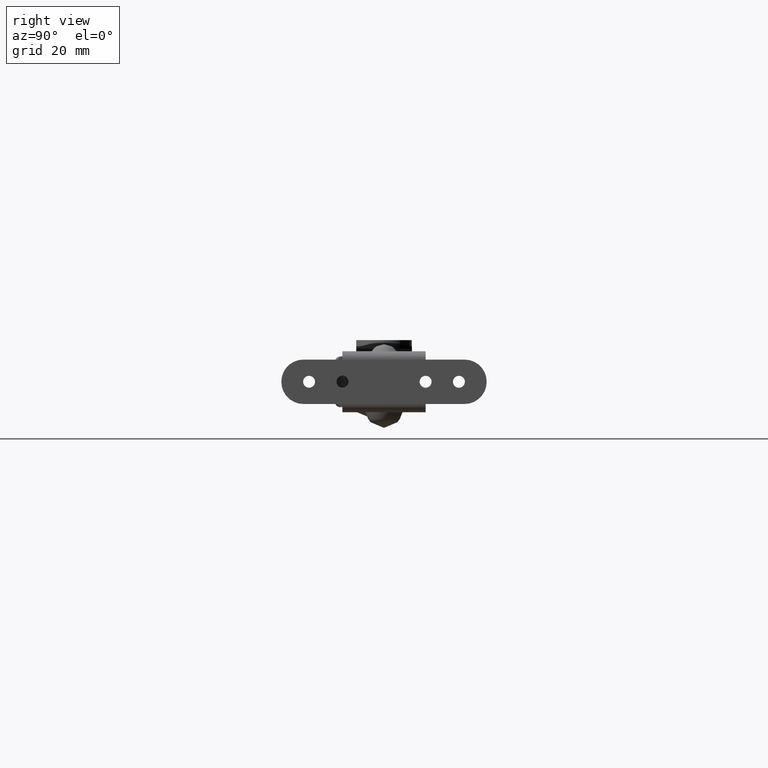
[diagram: clean part render]
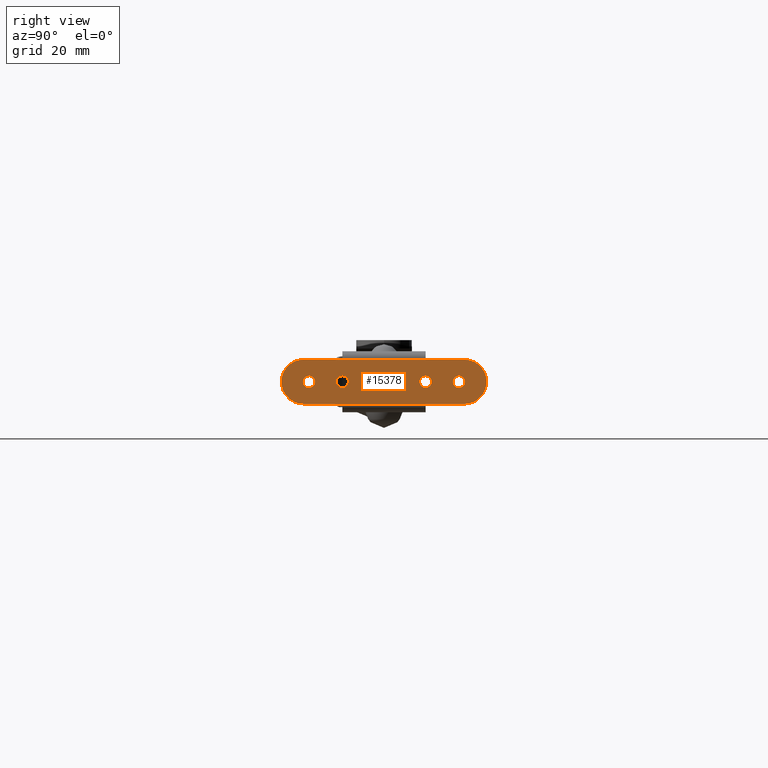
[diagram: same view with one face highlighted and labeled with its STEP entity id]
A machine part, right view. The second image highlights one B-rep face of the part: STEP entity #15378.
In plain terms, the highlighted face is a freeform B-spline surface patch.
Its self-contained STEP definition (entity closure, byte-faithful):
#12897=CARTESIAN_POINT('',(18.0,-25.459201807567080,1.499477964155450));
#12898=VERTEX_POINT('',#12897);
#12904=CARTESIAN_POINT('',(18.0,-27.0,2.150000000000000));
#12905=VERTEX_POINT('',#12904);
#12906=CARTESIAN_POINT('',(18.0,-27.0,2.150000000000000));
#12907=CARTESIAN_POINT('',(17.999999999999989,-26.695750483123220,2.150423394734081));
#12908=CARTESIAN_POINT('',(18.000000000000028,-26.123532469456698,2.026276552338809));
#12909=CARTESIAN_POINT('',(17.999999999999972,-25.646271446930260,1.692024193561688));
#12910=CARTESIAN_POINT('',(18.0,-25.459201807567080,1.499477964155450));
#12911=B_SPLINE_CURVE_WITH_KNOTS('',3,(#12906,#12907,#12908,#12909,#12910),.UNSPECIFIED.,.F.,.U.,(4,1,4),(0.000000164949060,0.912572123704127,1.717868768169416),.UNSPECIFIED.);
#12912=EDGE_CURVE('',#12905,#12898,#12911,.T.);
#12914=CARTESIAN_POINT('',(18.0,-29.149999999990779,0.000006295538745));
#12915=VERTEX_POINT('',#12914);
#12916=CARTESIAN_POINT('',(18.0,-29.149999999990779,0.000006295538745));
#12917=CARTESIAN_POINT('',(18.0,-29.150297612773510,0.281493025438892));
#12918=CARTESIAN_POINT('',(18.000000000000060,-29.062364559717221,0.720973631268849));
#12919=CARTESIAN_POINT('',(17.999999999999929,-28.729553056799141,1.325705955840567));
#12920=CARTESIAN_POINT('',(18.000000000000099,-28.350973642690839,1.704338259039302));
#12921=CARTESIAN_POINT('',(17.999999999999879,-27.755978427585411,2.051033853443723));
#12922=CARTESIAN_POINT('',(18.000000000000060,-27.316743552931602,2.150514070509237));
#12923=CARTESIAN_POINT('',(18.0,-27.0,2.150000000000000));
#12924=B_SPLINE_CURVE_WITH_KNOTS('',3,(#12916,#12917,#12918,#12919,#12920,#12921,#12922,#12923),.UNSPECIFIED.,.F.,.U.,(4,1,1,1,1,4),(0.000000606276210,0.844323780289163,1.319260433936023,2.058033488242341,2.427423264264629,3.377293302073351),.UNSPECIFIED.);
#12925=EDGE_CURVE('',#12915,#12905,#12924,.T.);
#12927=CARTESIAN_POINT('',(18.0,-27.0,-2.150000000000000));
#12928=VERTEX_POINT('',#12927);
#12929=CARTESIAN_POINT('',(18.0,-27.0,-2.150000000000000));
#12930=CARTESIAN_POINT('',(17.999999999999989,-27.281493274410870,-2.150305941666503));
#12931=CARTESIAN_POINT('',(18.000000000000039,-27.720966571098970,-2.062351286567165));
#12932=CARTESIAN_POINT('',(17.999999999999961,-28.279103580769998,-1.755113143020389));
#12933=CARTESIAN_POINT('',(18.000000000000039,-28.695320086357711,-1.368577850952369));
#12934=CARTESIAN_POINT('',(17.999999999999940,-29.051831889488611,-0.773755530901841));
#12935=CARTESIAN_POINT('',(18.000000000000011,-29.150316741814379,-0.281478578626584));
#12936=CARTESIAN_POINT('',(18.0,-29.149999999990779,0.000006295538745));
#12937=B_SPLINE_CURVE_WITH_KNOTS('',3,(#12929,#12930,#12931,#12932,#12933,#12934,#12935,#12936),.UNSPECIFIED.,.F.,.U.,(4,1,1,1,1,4),(0.000000597697992,0.844325547906954,1.319263190933819,1.899671243941788,2.532975447721739,3.377300398789865),.UNSPECIFIED.);
#12938=EDGE_CURVE('',#12928,#12915,#12937,.T.);
#12940=CARTESIAN_POINT('',(18.0,-25.414852835289750,-1.452520295265433));
#12941=VERTEX_POINT('',#12940);
#12942=CARTESIAN_POINT('',(18.0,-25.414852835289750,-1.452520295265433));
#12943=CARTESIAN_POINT('',(18.000000000000011,-25.602839345318340,-1.658071100082351));
#12944=CARTESIAN_POINT('',(18.0,-26.090622456890991,-2.016670596292910));
#12945=CARTESIAN_POINT('',(17.999999999999989,-26.684306013727589,-2.150432091810990));
#12946=CARTESIAN_POINT('',(18.0,-27.0,-2.150000000000000));
#12947=B_SPLINE_CURVE_WITH_KNOTS('',3,(#12942,#12943,#12944,#12945,#12946),.UNSPECIFIED.,.F.,.U.,(4,1,4),(0.000000157394088,0.835571402544047,1.782467589632661),.UNSPECIFIED.);
#12948=EDGE_CURVE('',#12941,#12928,#12947,.T.);
#13041=CARTESIAN_POINT('',(18.0,-24.850000000009221,-0.000006295538746));
#13042=VERTEX_POINT('',#13041);
#13043=CARTESIAN_POINT('',(18.0,-24.850000000009221,-0.000006295538746));
#13044=CARTESIAN_POINT('',(18.000000000000028,-24.849952973655629,-0.199357095401086));
#13045=CARTESIAN_POINT('',(17.999999999999911,-24.924383772497428,-0.730967208629726));
#13046=CARTESIAN_POINT('',(18.000000000000060,-25.189823750439981,-1.207896504227904));
#13047=CARTESIAN_POINT('',(18.0,-25.414852835289750,-1.452520295265433));
#13048=B_SPLINE_CURVE_WITH_KNOTS('',3,(#13043,#13044,#13045,#13046,#13047),.UNSPECIFIED.,.F.,.U.,(4,1,4),(0.000000113973257,0.598074431573798,1.594824979661138),.UNSPECIFIED.);
#13049=EDGE_CURVE('',#13042,#12941,#13048,.T.);
#13051=CARTESIAN_POINT('',(18.0,-25.459201807567080,1.499477964155450));
#13052=CARTESIAN_POINT('',(17.999999999999950,-25.278178280296611,1.313790283507013));
#13053=CARTESIAN_POINT('',(18.000000000000039,-24.965358004063742,0.846658013868533));
#13054=CARTESIAN_POINT('',(18.0,-24.849601018985648,0.293900815568005));
#13055=CARTESIAN_POINT('',(18.0,-24.850000000009221,-0.000006295538746));
#13056=B_SPLINE_CURVE_WITH_KNOTS('',3,(#13051,#13052,#13053,#13054,#13055),.UNSPECIFIED.,.F.,.U.,(4,1,4),(0.000000138936657,0.777900639050482,1.659433217765617),.UNSPECIFIED.);
#13057=EDGE_CURVE('',#12898,#13042,#13056,.T.);
#13236=CARTESIAN_POINT('',(18.0,-13.459201807567080,1.499477964155450));
#13237=VERTEX_POINT('',#13236);
#13243=CARTESIAN_POINT('',(18.0,-15.0,2.150000000000000));
#13244=VERTEX_POINT('',#13243);
#13245=CARTESIAN_POINT('',(18.0,-15.0,2.150000000000000));
#13246=CARTESIAN_POINT('',(18.000000000000021,-14.695744088728199,2.150434113083628));
#13247=CARTESIAN_POINT('',(17.999999999999989,-14.123555263226290,2.026242237522251));
#13248=CARTESIAN_POINT('',(18.0,-13.646256848641100,1.692045750154048));
#13249=CARTESIAN_POINT('',(18.0,-13.459201807567080,1.499477964155450));
#13250=B_SPLINE_CURVE_WITH_KNOTS('',3,(#13245,#13246,#13247,#13248,#13249),.UNSPECIFIED.,.F.,.U.,(4,1,4),(0.000000164949174,0.912572123704182,1.717868768169416),.UNSPECIFIED.);
#13251=EDGE_CURVE('',#13244,#13237,#13250,.T.);
#13253=CARTESIAN_POINT('',(18.0,-17.149999999990779,0.000006295538745));
#13254=VERTEX_POINT('',#13253);
#13255=CARTESIAN_POINT('',(18.0,-17.149999999990779,0.000006295538745));
#13256=CARTESIAN_POINT('',(17.999999999999989,-17.150301557022200,0.281485255457499));
#13257=CARTESIAN_POINT('',(18.000000000000028,-17.041364549900571,0.826551286772748));
#13258=CARTESIAN_POINT('',(17.999999999999972,-16.573342444659168,1.546589612127106));
#13259=CARTESIAN_POINT('',(18.0,-15.861747313068379,2.034520378152779));
#13260=CARTESIAN_POINT('',(18.0,-15.281461266786710,2.150266771089999));
#13261=CARTESIAN_POINT('',(18.0,-15.0,2.150000000000000));
#13262=B_SPLINE_CURVE_WITH_KNOTS('',3,(#13255,#13256,#13257,#13258,#13259,#13260,#13261),.UNSPECIFIED.,.F.,.U.,(4,1,1,1,4),(0.000000606274981,0.844323780288356,1.635966672481380,2.532970128918777,3.377293302073343),.UNSPECIFIED.);
#13263=EDGE_CURVE('',#13254,#13244,#13262,.T.);
#13265=CARTESIAN_POINT('',(18.0,-15.0,-2.150000000000000));
#13266=VERTEX_POINT('',#13265);
#13267=CARTESIAN_POINT('',(18.0,-15.0,-2.150000000000000));
#13268=CARTESIAN_POINT('',(17.999999999999989,-15.228673910048339,-2.150133454254727));
#13269=CARTESIAN_POINT('',(18.0,-15.633153007300320,-2.084800339004545));
#13270=CARTESIAN_POINT('',(18.000000000000028,-16.241998734765179,-1.797009343236360));
#13271=CARTESIAN_POINT('',(17.999999999999961,-16.766473407785821,-1.310068851278645));
#13272=CARTESIAN_POINT('',(17.999999999999979,-17.087979555118331,-0.650858085215618));
#13273=CARTESIAN_POINT('',(18.000000000000071,-17.150032759548729,-0.193463432816850));
#13274=CARTESIAN_POINT('',(18.0,-17.149999999990779,0.000006295538745));
#13275=B_SPLINE_CURVE_WITH_KNOTS('',3,(#13267,#13268,#13269,#13270,#13271,#13272,#13273,#13274),.UNSPECIFIED.,.F.,.U.,(4,1,1,1,1,4),(0.000000597693784,0.685998302191267,1.213733763379951,2.005211096693193,2.796848007169019,3.377300398789904),.UNSPECIFIED.);
#13276=EDGE_CURVE('',#13266,#13254,#13275,.T.);
#13278=CARTESIAN_POINT('',(18.0,-13.414852835289750,-1.452520295265434));
#13279=VERTEX_POINT('',#13278);
#13280=CARTESIAN_POINT('',(18.0,-13.414852835289750,-1.452520295265434));
#13281=CARTESIAN_POINT('',(17.999999999999979,-13.590356029739810,-1.644286150257439));
#13282=CARTESIAN_POINT('',(18.000000000000039,-14.072177000774300,-2.008502698538298));
#13283=CARTESIAN_POINT('',(18.0,-14.665693857315340,-2.150579960358619));
#13284=CARTESIAN_POINT('',(18.0,-15.0,-2.150000000000000));
#13285=B_SPLINE_CURVE_WITH_KNOTS('',3,(#13280,#13281,#13282,#13283,#13284),.UNSPECIFIED.,.F.,.U.,(4,1,4),(0.000000157393799,0.779855805970297,1.782467589632663),.UNSPECIFIED.);
#13286=EDGE_CURVE('',#13279,#13266,#13285,.T.);
#13379=CARTESIAN_POINT('',(18.0,-12.850000000009221,-0.000006295538747));
#13380=VERTEX_POINT('',#13379);
#13381=CARTESIAN_POINT('',(18.0,-12.850000000009221,-0.000006295538747));
#13382=CARTESIAN_POINT('',(18.000000000000039,-12.849442002294399,-0.332373944443628));
#13383=CARTESIAN_POINT('',(17.999999999999961,-12.975758942813700,-0.863365946456873));
#13384=CARTESIAN_POINT('',(18.000000000000021,-13.280166848975160,-1.305570416271069));
#13385=CARTESIAN_POINT('',(18.0,-13.414852835289750,-1.452520295265434));
#13386=B_SPLINE_CURVE_WITH_KNOTS('',3,(#13381,#13382,#13383,#13384,#13385),.UNSPECIFIED.,.F.,.U.,(4,1,4),(0.000000113973225,0.996750661525763,1.594824979661133),.UNSPECIFIED.);
#13387=EDGE_CURVE('',#13380,#13279,#13386,.T.);
#13389=CARTESIAN_POINT('',(18.0,-13.459201807567080,1.499477964155450));
#13390=CARTESIAN_POINT('',(18.000000000000060,-13.217426659037249,1.252136543511485));
#13391=CARTESIAN_POINT('',(17.999999999999861,-12.930588874066681,0.760564932018708));
#13392=CARTESIAN_POINT('',(18.000000000000071,-12.849935625625591,0.207420895109838));
#13393=CARTESIAN_POINT('',(18.0,-12.850000000009221,-0.000006295538747));
#13394=B_SPLINE_CURVE_WITH_KNOTS('',3,(#13389,#13390,#13391,#13392,#13393),.UNSPECIFIED.,.F.,.U.,(4,1,4),(0.000000138936426,1.037128894883254,1.659433217765619),.UNSPECIFIED.);
#13395=EDGE_CURVE('',#13237,#13380,#13394,.T.);
#13574=CARTESIAN_POINT('',(18.0,16.540798192432920,1.499477964155450));
#13575=VERTEX_POINT('',#13574);
#13581=CARTESIAN_POINT('',(18.0,15.0,2.150000000000000));
#13582=VERTEX_POINT('',#13581);
#13583=CARTESIAN_POINT('',(18.0,15.0,2.150000000000000));
#13584=CARTESIAN_POINT('',(18.000000000000011,15.304241433917680,2.150371273074228));
#13585=CARTESIAN_POINT('',(18.000000000000011,15.876469711283869,2.026322671281937));
#13586=CARTESIAN_POINT('',(17.999999999999989,16.353738515937710,1.692028989356387));
#13587=CARTESIAN_POINT('',(18.0,16.540798192432920,1.499477964155450));
#13588=B_SPLINE_CURVE_WITH_KNOTS('',3,(#13583,#13584,#13585,#13586,#13587),.UNSPECIFIED.,.F.,.U.,(4,1,4),(0.000000164949737,0.912572123704434,1.717868768169410),.UNSPECIFIED.);
#13589=EDGE_CURVE('',#13582,#13575,#13588,.T.);
#13591=CARTESIAN_POINT('',(18.0,12.850000000009221,0.000006295538746));
#13592=VERTEX_POINT('',#13591);
#13593=CARTESIAN_POINT('',(18.0,12.850000000009221,0.000006295538746));
#13594=CARTESIAN_POINT('',(18.0,12.849693314433649,0.281483492746735));
#13595=CARTESIAN_POINT('',(17.999999999999979,12.948153977729600,0.773778037201649));
#13596=CARTESIAN_POINT('',(18.000000000000028,13.322940596781949,1.399119685228218));
#13597=CARTESIAN_POINT('',(17.999999999999950,13.750015145177070,1.776679861102987));
#13598=CARTESIAN_POINT('',(18.000000000000050,14.314200408061170,2.069370795820938));
#13599=CARTESIAN_POINT('',(17.999999999999961,14.718500409004671,2.150330942953661));
#13600=CARTESIAN_POINT('',(18.0,15.0,2.150000000000000));
#13601=B_SPLINE_CURVE_WITH_KNOTS('',3,(#13593,#13594,#13595,#13596,#13597,#13598,#13599,#13600),.UNSPECIFIED.,.F.,.U.,(4,1,1,1,1,4),(0.000000606275462,0.844323780288794,1.477626661721971,2.163562683988994,2.532970128918807,3.377293302073351),.UNSPECIFIED.);
#13602=EDGE_CURVE('',#13592,#13582,#13601,.T.);
#13604=CARTESIAN_POINT('',(18.0,15.0,-2.150000000000000));
#13605=VERTEX_POINT('',#13604);
#13606=CARTESIAN_POINT('',(18.0,15.0,-2.150000000000000));
#13607=CARTESIAN_POINT('',(18.000000000000021,14.771324516884940,-2.150116152699336));
#13608=CARTESIAN_POINT('',(17.999999999999961,14.331661376712770,-2.079195825140819));
#13609=CARTESIAN_POINT('',(18.000000000000060,13.759895633606410,-1.791405473385591));
#13610=CARTESIAN_POINT('',(18.0,13.278605404434780,-1.344443413225727));
#13611=CARTESIAN_POINT('',(17.999999999999961,12.935515145559529,-0.738710577494516));
#13612=CARTESIAN_POINT('',(18.000000000000082,12.849837644432240,-0.246263842023611));
#13613=CARTESIAN_POINT('',(18.0,12.850000000009221,0.000006295538746));
#13614=B_SPLINE_CURVE_WITH_KNOTS('',3,(#13606,#13607,#13608,#13609,#13610,#13611,#13612,#13613),.UNSPECIFIED.,.F.,.U.,(4,1,1,1,1,4),(0.000000597693810,0.685998302191261,1.319263190931543,1.899671243940193,2.638522534265282,3.377300398789882),.UNSPECIFIED.);
#13615=EDGE_CURVE('',#13605,#13592,#13614,.T.);
#13617=CARTESIAN_POINT('',(18.0,16.585147164710250,-1.452520295265433));
#13618=VERTEX_POINT('',#13617);
#13619=CARTESIAN_POINT('',(18.0,16.585147164710250,-1.452520295265433));
#13620=CARTESIAN_POINT('',(17.999999999999989,16.472267741060609,-1.575726350565062));
#13621=CARTESIAN_POINT('',(18.0,16.175211690621332,-1.832405354862950));
#13622=CARTESIAN_POINT('',(18.000000000000011,15.631268941328470,-2.088750679753948));
#13623=CARTESIAN_POINT('',(18.000000000000011,15.204237002662770,-2.150059197079588));
#13624=CARTESIAN_POINT('',(18.0,15.0,-2.150000000000000));
#13625=B_SPLINE_CURVE_WITH_KNOTS('',3,(#13619,#13620,#13621,#13622,#13623,#13624),.UNSPECIFIED.,.F.,.U.,(4,1,1,4),(0.000000157394043,0.501324065869875,1.169737218641443,1.782467589632661),.UNSPECIFIED.);
#13626=EDGE_CURVE('',#13618,#13605,#13625,.T.);
#13720=CARTESIAN_POINT('',(18.0,17.149999999990779,-0.000006295538746));
#13721=VERTEX_POINT('',#13720);
#13722=CARTESIAN_POINT('',(18.0,17.149999999990779,-0.000006295538746));
#13723=CARTESIAN_POINT('',(18.0,17.150165667007450,-0.249226534986294));
#13724=CARTESIAN_POINT('',(18.000000000000060,17.056495809530031,-0.780677257322077));
#13725=CARTESIAN_POINT('',(17.999999999999929,16.776194182768510,-1.244493448982127));
#13726=CARTESIAN_POINT('',(18.0,16.585147164710250,-1.452520295265433));
#13727=B_SPLINE_CURVE_WITH_KNOTS('',3,(#13722,#13723,#13724,#13725,#13726),.UNSPECIFIED.,.F.,.U.,(4,1,4),(0.000000113973284,0.747610898959969,1.594824979661133),.UNSPECIFIED.);
#13728=EDGE_CURVE('',#13721,#13618,#13727,.T.);
#13730=CARTESIAN_POINT('',(18.0,16.540798192432920,1.499477964155450));
#13731=CARTESIAN_POINT('',(18.0,16.721789921221681,1.313769114837376));
#13732=CARTESIAN_POINT('',(18.0,17.034708629401869,0.846698220804770));
#13733=CARTESIAN_POINT('',(18.0,17.150351629026961,0.293882229308126));
#13734=CARTESIAN_POINT('',(18.0,17.149999999990779,-0.000006295538746));
#13735=B_SPLINE_CURVE_WITH_KNOTS('',3,(#13730,#13731,#13732,#13733,#13734),.UNSPECIFIED.,.F.,.U.,(4,1,4),(0.000000138936408,0.777900639050451,1.659433217765615),.UNSPECIFIED.);
#13736=EDGE_CURVE('',#13575,#13721,#13735,.T.);
#13915=CARTESIAN_POINT('',(18.0,28.540798192432920,1.499477964155449));
#13916=VERTEX_POINT('',#13915);
#13922=CARTESIAN_POINT('',(18.0,27.0,2.150000000000000));
#13923=VERTEX_POINT('',#13922);
#13924=CARTESIAN_POINT('',(18.0,27.0,2.150000000000000));
#13925=CARTESIAN_POINT('',(18.0,27.358083388531661,2.150878754148904));
#13926=CARTESIAN_POINT('',(18.0,27.929751633630769,2.003472849356493));
#13927=CARTESIAN_POINT('',(18.000000000000011,28.391086588708081,1.653413385761347));
#13928=CARTESIAN_POINT('',(18.0,28.540798192432920,1.499477964155449));
#13929=B_SPLINE_CURVE_WITH_KNOTS('',3,(#13924,#13925,#13926,#13927,#13928),.UNSPECIFIED.,.F.,.U.,(4,1,4),(0.000000164949099,1.073649244360040,1.717868768169422),.UNSPECIFIED.);
#13930=EDGE_CURVE('',#13923,#13916,#13929,.T.);
#13932=CARTESIAN_POINT('',(18.0,24.850000000009221,0.000006295538745));
#13933=VERTEX_POINT('',#13932);
#13934=CARTESIAN_POINT('',(18.0,24.850000000009221,0.000006295538745));
#13935=CARTESIAN_POINT('',(18.000000000000011,24.849686426757419,0.281506491887776));
#13936=CARTESIAN_POINT('',(17.999999999999961,24.937671055993651,0.720948096734108));
#13937=CARTESIAN_POINT('',(18.000000000000082,25.261898510182430,1.310167306180281));
#13938=CARTESIAN_POINT('',(17.999999999999851,25.659986374512229,1.718165797396204));
#13939=CARTESIAN_POINT('',(18.000000000000188,26.261449805235451,2.058802038979283));
#13940=CARTESIAN_POINT('',(17.999999999999869,26.718499571228900,2.150337533300317));
#13941=CARTESIAN_POINT('',(18.0,27.0,2.150000000000000));
#13942=B_SPLINE_CURVE_WITH_KNOTS('',3,(#13934,#13935,#13936,#13937,#13938,#13939,#13940,#13941),.UNSPECIFIED.,.F.,.U.,(4,1,1,1,1,4),(0.000000606272893,0.844323780287274,1.319260433934880,2.005206869983384,2.532970128918695,3.377293302073346),.UNSPECIFIED.);
#13943=EDGE_CURVE('',#13933,#13923,#13942,.T.);
#13945=CARTESIAN_POINT('',(18.0,27.0,-2.150000000000000));
#13946=VERTEX_POINT('',#13945);
#13947=CARTESIAN_POINT('',(18.0,27.0,-2.150000000000000));
#13948=CARTESIAN_POINT('',(17.999999999999989,26.806541379758428,-2.150004548118281));
#13949=CARTESIAN_POINT('',(18.000000000000028,26.313883058174159,-2.083340039780637));
#13950=CARTESIAN_POINT('',(17.999999999999979,25.691686561745200,-1.760626524212652));
#13951=CARTESIAN_POINT('',(18.000000000000021,25.244910416824961,-1.279045078835551));
#13952=CARTESIAN_POINT('',(18.000000000000131,24.937645516223540,-0.720958076929820));
#13953=CARTESIAN_POINT('',(17.999999999999829,24.849693036016959,-0.281487866287812));
#13954=CARTESIAN_POINT('',(18.0,24.850000000009221,0.000006295538745));
#13955=B_SPLINE_CURVE_WITH_KNOTS('',3,(#13947,#13948,#13949,#13950,#13951,#13952,#13953,#13954),.UNSPECIFIED.,.F.,.U.,(4,1,1,1,1,4),(0.000000597692859,0.580452994922159,1.477629763892594,2.058037791726003,2.532975447720886,3.377300398789868),.UNSPECIFIED.);
#13956=EDGE_CURVE('',#13946,#13933,#13955,.T.);
#13958=CARTESIAN_POINT('',(18.0,28.585147164710250,-1.452520295265432));
#13959=VERTEX_POINT('',#13958);
#13960=CARTESIAN_POINT('',(18.0,28.585147164710250,-1.452520295265432));
#13961=CARTESIAN_POINT('',(18.000000000000071,28.409662830688781,-1.644311184685287));
#13962=CARTESIAN_POINT('',(17.999999999999812,27.927783579064080,-2.008440165388835));
#13963=CARTESIAN_POINT('',(18.000000000000160,27.334324796847771,-2.150641511915008));
#13964=CARTESIAN_POINT('',(18.0,27.0,-2.150000000000000));
#13965=B_SPLINE_CURVE_WITH_KNOTS('',3,(#13960,#13961,#13962,#13963,#13964),.UNSPECIFIED.,.F.,.U.,(4,1,4),(0.000000157393726,0.779855805970200,1.782467589632662),.UNSPECIFIED.);
#13966=EDGE_CURVE('',#13959,#13946,#13965,.T.);
#14059=CARTESIAN_POINT('',(18.0,29.149999999990779,-0.000006295538747));
#14060=VERTEX_POINT('',#14059);
#14061=CARTESIAN_POINT('',(18.0,29.149999999990779,-0.000006295538747));
#14062=CARTESIAN_POINT('',(18.0,29.150645891228692,-0.332389950168884));
#14063=CARTESIAN_POINT('',(18.0,29.024136221845879,-0.863346522445411));
#14064=CARTESIAN_POINT('',(17.999999999999989,28.719860946736009,-1.305575468757849));
#14065=CARTESIAN_POINT('',(18.0,28.585147164710250,-1.452520295265432));
#14066=B_SPLINE_CURVE_WITH_KNOTS('',3,(#14061,#14062,#14063,#14064,#14065),.UNSPECIFIED.,.F.,.U.,(4,1,4),(0.000000113973804,0.996750661525947,1.594824979661121),.UNSPECIFIED.);
#14067=EDGE_CURVE('',#14060,#13959,#14066,.T.);
#14069=CARTESIAN_POINT('',(18.0,28.540798192432920,1.499477964155449));
#14070=CARTESIAN_POINT('',(17.999999999999979,28.721782329435829,1.313763346080932));
#14071=CARTESIAN_POINT('',(18.000000000000050,29.034714231377709,0.846703737183817));
#14072=CARTESIAN_POINT('',(17.999999999999961,29.150357782406751,0.293881936350264));
#14073=CARTESIAN_POINT('',(18.0,29.149999999990779,-0.000006295538747));
#14074=B_SPLINE_CURVE_WITH_KNOTS('',3,(#14069,#14070,#14071,#14072,#14073),.UNSPECIFIED.,.F.,.U.,(4,1,4),(0.000000138936423,0.777900639050454,1.659433217765613),.UNSPECIFIED.);
#14075=EDGE_CURVE('',#13916,#14060,#14074,.T.);
#14619=CARTESIAN_POINT('',(18.0,15.0,8.0));
#14620=VERTEX_POINT('',#14619);
#14641=CARTESIAN_POINT('',(18.0,-15.0,8.0));
#14642=VERTEX_POINT('',#14641);
#14655=CARTESIAN_POINT('',(18.0,-15.0,8.0));
#14656=CARTESIAN_POINT('',(18.0,15.0,8.0));
#14657=QUASI_UNIFORM_CURVE('',1,(#14655,#14656),.UNSPECIFIED.,.F.,.U.);
#14658=EDGE_CURVE('',#14642,#14620,#14657,.T.);
#14679=CARTESIAN_POINT('',(18.0,15.0,-8.0));
#14680=VERTEX_POINT('',#14679);
#14693=CARTESIAN_POINT('',(18.0,-15.0,-8.0));
#14694=VERTEX_POINT('',#14693);
#14695=CARTESIAN_POINT('',(18.0,15.0,-8.0));
#14696=CARTESIAN_POINT('',(18.0,-15.0,-8.0));
#14697=QUASI_UNIFORM_CURVE('',1,(#14695,#14696),.UNSPECIFIED.,.F.,.U.);
#14698=EDGE_CURVE('',#14680,#14694,#14697,.T.);
#14739=CARTESIAN_POINT('',(18.0,-29.0,-8.0));
#14740=VERTEX_POINT('',#14739);
#14741=CARTESIAN_POINT('',(18.0,-36.999999999999297,0.000003359956013));
#14742=VERTEX_POINT('',#14741);
#14743=CARTESIAN_POINT('',(18.0,-29.0,-8.0));
#14744=CARTESIAN_POINT('',(18.000000000000021,-29.687234287236350,-8.000191493016391));
#14745=CARTESIAN_POINT('',(18.000000000000011,-30.767040098526198,-7.859951317602084));
#14746=CARTESIAN_POINT('',(18.000000000000011,-32.411646713417177,-7.294233246089052));
#14747=CARTESIAN_POINT('',(17.999999999999890,-33.750496091851787,-6.513950516873647));
#14748=CARTESIAN_POINT('',(18.000000000000149,-34.912723600115392,-5.447337013712999));
#14749=CARTESIAN_POINT('',(17.999999999999769,-35.794391886155012,-4.303160590186473));
#14750=CARTESIAN_POINT('',(18.000000000000512,-36.703311243047843,-2.551939699012244));
#14751=CARTESIAN_POINT('',(17.999999999999751,-37.001069657075710,-1.014650573682013));
#14752=CARTESIAN_POINT('',(18.0,-36.999999999999297,0.000003359956013));
#14753=B_SPLINE_CURVE_WITH_KNOTS('',3,(#14743,#14744,#14745,#14746,#14747,#14748,#14749,#14750,#14751,#14752),.UNSPECIFIED.,.F.,.U.,(4,1,1,1,1,1,1,4),(0.000000299004238,2.061652791882080,3.239789943111862,5.203328517679768,6.675867134702102,7.952163252152617,9.523014808326348,12.566451356767210),.UNSPECIFIED.);
#14754=EDGE_CURVE('',#14740,#14742,#14753,.T.);
#14756=CARTESIAN_POINT('',(18.0,-29.0,8.0));
#14757=VERTEX_POINT('',#14756);
#14758=CARTESIAN_POINT('',(18.0,-36.999999999999297,0.000003359956013));
#14759=CARTESIAN_POINT('',(17.999999999999961,-37.000080489654032,0.556322269203726));
#14760=CARTESIAN_POINT('',(18.000000000000050,-36.880056033210337,1.701663113856630));
#14761=CARTESIAN_POINT('',(17.999999999999979,-36.281248847255007,3.515050457946083));
#14762=CARTESIAN_POINT('',(18.000000000000082,-35.210085794161522,5.183997365839030));
#14763=CARTESIAN_POINT('',(17.999999999999911,-33.874650467590172,6.408955914789164));
#14764=CARTESIAN_POINT('',(18.000000000000099,-32.387778967145529,7.312701297789743));
#14765=CARTESIAN_POINT('',(17.999999999999979,-30.799897168659260,7.869918144587428));
#14766=CARTESIAN_POINT('',(18.0,-29.556301029805439,8.000050342610455));
#14767=CARTESIAN_POINT('',(18.0,-29.0,8.0));
#14768=B_SPLINE_CURVE_WITH_KNOTS('',3,(#14758,#14759,#14760,#14761,#14762,#14763,#14764,#14765,#14766,#14767),.UNSPECIFIED.,.F.,.U.,(4,1,1,1,1,1,1,4),(0.000000300172083,1.668954682143841,3.436139358860833,5.694244426166740,7.559466611785645,8.835769359712312,10.897510655463091,12.566447569289959),.UNSPECIFIED.);
#14769=EDGE_CURVE('',#14742,#14757,#14768,.T.);
#14834=CARTESIAN_POINT('',(18.0,29.0,-8.0));
#14835=VERTEX_POINT('',#14834);
#14873=CARTESIAN_POINT('',(18.0,29.0,8.0));
#14874=VERTEX_POINT('',#14873);
#14880=CARTESIAN_POINT('',(18.0,36.999999999999297,-0.000003359956013));
#14881=VERTEX_POINT('',#14880);
#14882=CARTESIAN_POINT('',(18.0,29.0,8.0));
#14883=CARTESIAN_POINT('',(18.000000000000021,29.687234287236350,8.000191493016391));
#14884=CARTESIAN_POINT('',(18.000000000000011,30.767040098526198,7.859951317602084));
#14885=CARTESIAN_POINT('',(18.000000000000011,32.411646713417177,7.294233246089052));
#14886=CARTESIAN_POINT('',(17.999999999999890,33.750496091851787,6.513950516873647));
#14887=CARTESIAN_POINT('',(18.000000000000149,34.912723600115392,5.447337013712999));
#14888=CARTESIAN_POINT('',(17.999999999999769,35.794391886155012,4.303160590186473));
#14889=CARTESIAN_POINT('',(18.000000000000512,36.703311243047843,2.551939699012244));
#14890=CARTESIAN_POINT('',(17.999999999999751,37.001069657075710,1.014650573682013));
#14891=CARTESIAN_POINT('',(18.0,36.999999999999297,-0.000003359956013));
#14892=B_SPLINE_CURVE_WITH_KNOTS('',3,(#14882,#14883,#14884,#14885,#14886,#14887,#14888,#14889,#14890,#14891),.UNSPECIFIED.,.F.,.U.,(4,1,1,1,1,1,1,4),(0.000000299004238,2.061652791882080,3.239789943111862,5.203328517679768,6.675867134702102,7.952163252152617,9.523014808326348,12.566451356767210),.UNSPECIFIED.);
#14893=EDGE_CURVE('',#14874,#14881,#14892,.T.);
#14895=CARTESIAN_POINT('',(18.0,36.999999999999297,-0.000003359956013));
#14896=CARTESIAN_POINT('',(17.999999999999961,37.000080489654032,-0.556322269203726));
#14897=CARTESIAN_POINT('',(18.000000000000050,36.880056033210337,-1.701663113856630));
#14898=CARTESIAN_POINT('',(17.999999999999979,36.281248847255007,-3.515050457946083));
#14899=CARTESIAN_POINT('',(18.000000000000082,35.210085794161522,-5.183997365839030));
#14900=CARTESIAN_POINT('',(17.999999999999911,33.874650467590172,-6.408955914789164));
#14901=CARTESIAN_POINT('',(18.000000000000099,32.387778967145529,-7.312701297789743));
#14902=CARTESIAN_POINT('',(17.999999999999979,30.799897168659260,-7.869918144587428));
#14903=CARTESIAN_POINT('',(18.0,29.556301029805439,-8.000050342610455));
#14904=CARTESIAN_POINT('',(18.0,29.0,-8.0));
#14905=B_SPLINE_CURVE_WITH_KNOTS('',3,(#14895,#14896,#14897,#14898,#14899,#14900,#14901,#14902,#14903,#14904),.UNSPECIFIED.,.F.,.U.,(4,1,1,1,1,1,1,4),(0.000000300172083,1.668954682143841,3.436139358860833,5.694244426166740,7.559466611785645,8.835769359712312,10.897510655463091,12.566447569289959),.UNSPECIFIED.);
#14906=EDGE_CURVE('',#14881,#14835,#14905,.T.);
#15313=CARTESIAN_POINT('',(18.0,40.696299856572871,8.799199968988896));
#15314=CARTESIAN_POINT('',(18.0,40.696299856572871,-8.799200398142338));
#15315=CARTESIAN_POINT('',(18.0,-40.696301841407539,8.799199968988896));
#15316=CARTESIAN_POINT('',(18.0,-40.696301841407539,-8.799200398142338));
#15317=B_SPLINE_SURFACE_WITH_KNOTS('',1,1,((#15313,#15315),(#15314,#15316)),.UNSPECIFIED.,.F.,.F.,.U.,(2,2),(2,2),(0.0,17.598400367131230),(0.0,81.392601697980410),.UNSPECIFIED.);
#15318=CARTESIAN_POINT('',(18.0,15.0,-8.0));
#15319=CARTESIAN_POINT('',(18.0,29.0,-8.0));
#15320=QUASI_UNIFORM_CURVE('',1,(#15318,#15319),.UNSPECIFIED.,.F.,.U.);
#15321=EDGE_CURVE('',#14680,#14835,#15320,.T.);
#15322=ORIENTED_EDGE('',*,*,#15321,.T.);
#15323=ORIENTED_EDGE('',*,*,#14906,.F.);
#15324=ORIENTED_EDGE('',*,*,#14893,.F.);
#15325=CARTESIAN_POINT('',(18.0,15.0,8.0));
#15326=CARTESIAN_POINT('',(18.0,29.0,8.0));
#15327=QUASI_UNIFORM_CURVE('',1,(#15325,#15326),.UNSPECIFIED.,.F.,.U.);
#15328=EDGE_CURVE('',#14620,#14874,#15327,.T.);
#15329=ORIENTED_EDGE('',*,*,#15328,.F.);
#15330=ORIENTED_EDGE('',*,*,#14658,.F.);
#15331=CARTESIAN_POINT('',(18.0,-29.0,8.0));
#15332=CARTESIAN_POINT('',(18.0,-15.0,8.0));
#15333=QUASI_UNIFORM_CURVE('',1,(#15331,#15332),.UNSPECIFIED.,.F.,.U.);
#15334=EDGE_CURVE('',#14757,#14642,#15333,.T.);
#15335=ORIENTED_EDGE('',*,*,#15334,.F.);
#15336=ORIENTED_EDGE('',*,*,#14769,.F.);
#15337=ORIENTED_EDGE('',*,*,#14754,.F.);
#15338=CARTESIAN_POINT('',(18.0,-29.0,-8.0));
#15339=CARTESIAN_POINT('',(18.0,-15.0,-8.0));
#15340=QUASI_UNIFORM_CURVE('',1,(#15338,#15339),.UNSPECIFIED.,.F.,.U.);
#15341=EDGE_CURVE('',#14740,#14694,#15340,.T.);
#15342=ORIENTED_EDGE('',*,*,#15341,.T.);
#15343=ORIENTED_EDGE('',*,*,#14698,.F.);
#15344=EDGE_LOOP('',(#15322,#15323,#15324,#15329,#15330,#15335,#15336,#15337,#15342,#15343));
#15345=FACE_OUTER_BOUND('',#15344,.T.);
#15346=ORIENTED_EDGE('',*,*,#13276,.T.);
#15347=ORIENTED_EDGE('',*,*,#13263,.T.);
#15348=ORIENTED_EDGE('',*,*,#13251,.T.);
#15349=ORIENTED_EDGE('',*,*,#13395,.T.);
#15350=ORIENTED_EDGE('',*,*,#13387,.T.);
#15351=ORIENTED_EDGE('',*,*,#13286,.T.);
#15352=EDGE_LOOP('',(#15346,#15347,#15348,#15349,#15350,#15351));
#15353=FACE_BOUND('',#15352,.T.);
#15354=ORIENTED_EDGE('',*,*,#13615,.T.);
#15355=ORIENTED_EDGE('',*,*,#13602,.T.);
#15356=ORIENTED_EDGE('',*,*,#13589,.T.);
#15357=ORIENTED_EDGE('',*,*,#13736,.T.);
#15358=ORIENTED_EDGE('',*,*,#13728,.T.);
#15359=ORIENTED_EDGE('',*,*,#13626,.T.);
#15360=EDGE_LOOP('',(#15354,#15355,#15356,#15357,#15358,#15359));
#15361=FACE_BOUND('',#15360,.T.);
#15362=ORIENTED_EDGE('',*,*,#13956,.T.);
#15363=ORIENTED_EDGE('',*,*,#13943,.T.);
#15364=ORIENTED_EDGE('',*,*,#13930,.T.);
#15365=ORIENTED_EDGE('',*,*,#14075,.T.);
#15366=ORIENTED_EDGE('',*,*,#14067,.T.);
#15367=ORIENTED_EDGE('',*,*,#13966,.T.);
#15368=EDGE_LOOP('',(#15362,#15363,#15364,#15365,#15366,#15367));
#15369=FACE_BOUND('',#15368,.T.);
#15370=ORIENTED_EDGE('',*,*,#12938,.T.);
#15371=ORIENTED_EDGE('',*,*,#12925,.T.);
#15372=ORIENTED_EDGE('',*,*,#12912,.T.);
#15373=ORIENTED_EDGE('',*,*,#13057,.T.);
#15374=ORIENTED_EDGE('',*,*,#13049,.T.);
#15375=ORIENTED_EDGE('',*,*,#12948,.T.);
#15376=EDGE_LOOP('',(#15370,#15371,#15372,#15373,#15374,#15375));
#15377=FACE_BOUND('',#15376,.T.);
#15378=ADVANCED_FACE('',(#15345,#15353,#15361,#15369,#15377),#15317,.F.);